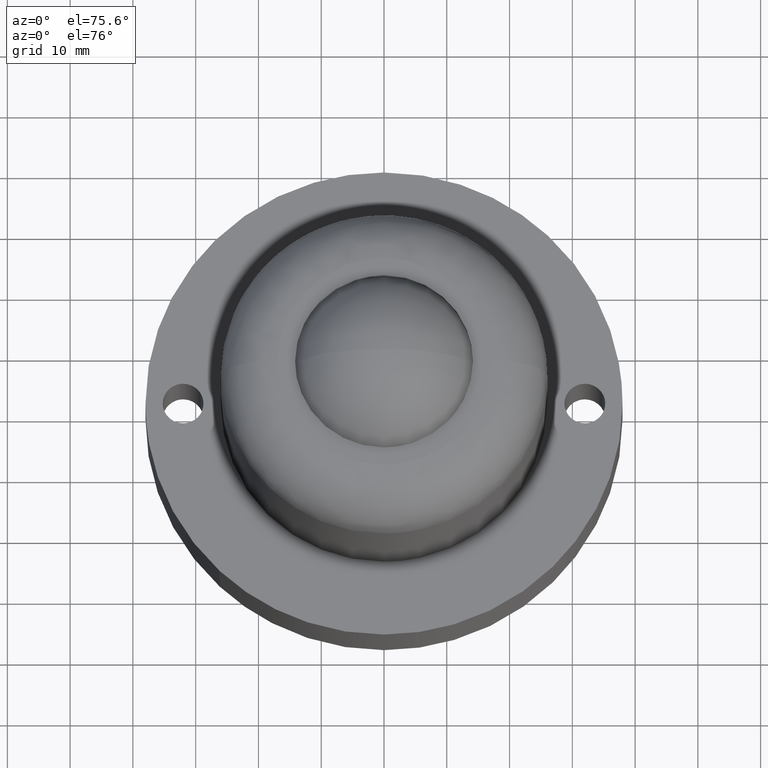
[diagram: clean part render]
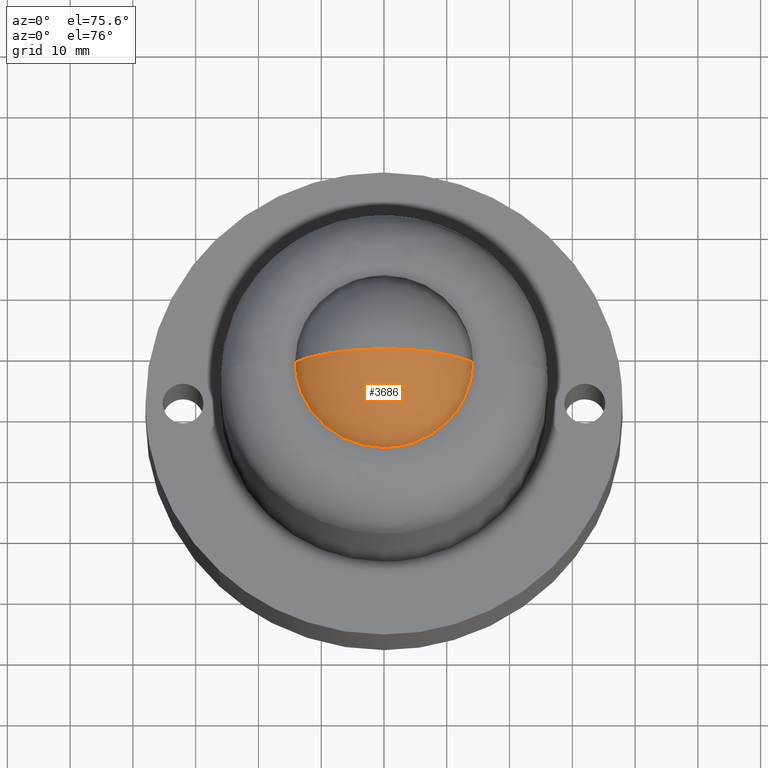
[diagram: same view with one face highlighted and labeled with its STEP entity id]
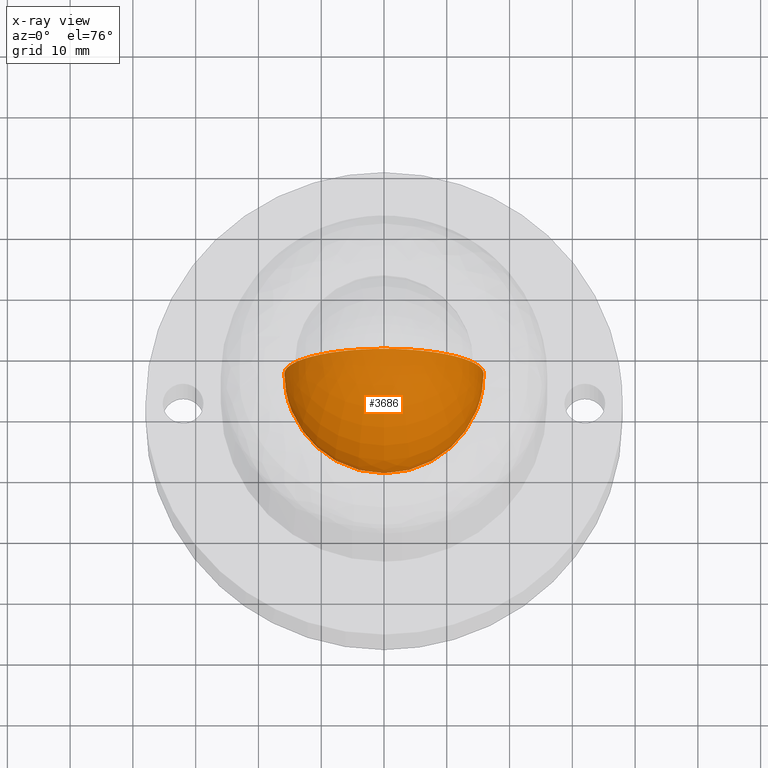
[diagram: x-ray of the same camera — body ghosted, the highlighted face saturated]
A machine part, auxiliary view. The second image highlights one B-rep face of the part: STEP entity #3686.
The next image is the same camera in x-ray: the body ghosted, the highlighted face saturated — about 0% of this face is hidden behind the body in this view.
In plain terms, the highlighted face is a freeform B-spline surface patch.
Its self-contained STEP definition (entity closure, byte-faithful):
#3566=CARTESIAN_POINT('',(-10.406150290438140,5.953124999999996,18.718849709561781));
#3567=CARTESIAN_POINT('',(-9.424437998887365,3.893867924528306,16.559082668150079));
#3568=CARTESIAN_POINT('',(-3.964247729690672,0.755952380952381,13.268009081236999));
#3569=CARTESIAN_POINT('',(3.964247729690829,0.755952380952381,13.268009081236999));
#3570=CARTESIAN_POINT('',(9.424437998887521,3.893867924528306,16.559082668150079));
#3571=CARTESIAN_POINT('',(10.406150290438299,5.953124999999996,18.718849709561781));
#3572=CARTESIAN_POINT('',(-12.565917331849850,3.893867924528306,19.700562001112562));
#3573=CARTESIAN_POINT('',(-11.892743189072174,0.755952380952381,17.232256810927751));
#3574=CARTESIAN_POINT('',(-5.370916278935775,-4.608870967741934,13.012251163192438));
#3575=CARTESIAN_POINT('',(5.370916278935932,-4.608870967741934,13.012251163192438));
#3576=CARTESIAN_POINT('',(11.892743189072329,0.755952380952381,17.232256810927751));
#3577=CARTESIAN_POINT('',(12.565917331850006,3.893867924528306,19.700562001112562));
#3578=CARTESIAN_POINT('',(-15.856990918762925,0.755952380952381,25.160752270309249));
#3579=CARTESIAN_POINT('',(-16.112748836807491,-4.608870967741934,23.754083721064148));
#3580=CARTESIAN_POINT('',(-8.324920232350497,-15.875000000000000,20.800079767649429));
#3581=CARTESIAN_POINT('',(8.324920232350653,-15.875000000000000,20.800079767649429));
#3582=CARTESIAN_POINT('',(16.112748836807643,-4.608870967741934,23.754083721064148));
#3583=CARTESIAN_POINT('',(15.856990918763080,0.755952380952381,25.160752270309249));
#3584=CARTESIAN_POINT('',(-15.856990918762925,0.755952380952381,33.089247729690747));
#3585=CARTESIAN_POINT('',(-16.112748836807491,-4.608870967741934,34.495916278935852));
#3586=CARTESIAN_POINT('',(-8.324920232350497,-15.875000000000000,37.449920232350578));
#3587=CARTESIAN_POINT('',(8.324920232350653,-15.875000000000000,37.449920232350578));
#3588=CARTESIAN_POINT('',(16.112748836807643,-4.608870967741934,34.495916278935852));
#3589=CARTESIAN_POINT('',(15.856990918763080,0.755952380952381,33.089247729690747));
#3590=CARTESIAN_POINT('',(-12.565917331849850,3.893867924528306,38.549437998887434));
#3591=CARTESIAN_POINT('',(-11.892743189072174,0.755952380952381,41.017743189072249));
#3592=CARTESIAN_POINT('',(-5.370916278935775,-4.608870967741934,45.237748836807569));
#3593=CARTESIAN_POINT('',(5.370916278935932,-4.608870967741934,45.237748836807569));
#3594=CARTESIAN_POINT('',(11.892743189072329,0.755952380952381,41.017743189072249));
#3595=CARTESIAN_POINT('',(12.565917331850006,3.893867924528306,38.549437998887434));
#3596=CARTESIAN_POINT('',(-10.406150290438140,5.953124999999996,39.531150290438219));
#3597=CARTESIAN_POINT('',(-9.424437998887365,3.893867924528306,41.690917331849931));
#3598=CARTESIAN_POINT('',(-3.964247729690672,0.755952380952381,44.981990918763003));
#3599=CARTESIAN_POINT('',(3.964247729690829,0.755952380952381,44.981990918763003));
#3600=CARTESIAN_POINT('',(9.424437998887521,3.893867924528306,41.690917331849931));
#3601=CARTESIAN_POINT('',(10.406150290438299,5.953124999999996,39.531150290438219));
#3609=(BOUNDED_SURFACE()B_SPLINE_SURFACE(2,2,((#3566,#3572,#3578,#3584,#3590,#3596),(#3567,#3573,#3579,#3585,#3591,#3597),(#3568,#3574,#3580,#3586,#3592,#3598),(#3569,#3575,#3581,#3587,#3593,#3599),(#3570,#3576,#3582,#3588,#3594,#3600),(#3571,#3577,#3583,#3589,#3595,#3601)),.UNSPECIFIED.,.F.,.F.,.U.)B_SPLINE_SURFACE_WITH_KNOTS((3,1,1,1,3),(3,1,1,1,3),(0.0,14.637222386550460,29.274444773100932,43.911667159651387,58.548889546201863),(0.0,14.637222386550469,29.274444773100939,43.911667159651408,58.548889546201877),.UNSPECIFIED.)GEOMETRIC_REPRESENTATION_ITEM()RATIONAL_B_SPLINE_SURFACE(((3.200000000000000,2.650000000000000,2.100000000000000,2.100000000000000,2.650000000000000,3.200000000000000),(2.650000000000000,2.100000000000000,1.550000000000000,1.550000000000000,2.100000000000000,2.650000000000000),(2.100000000000000,1.550000000000000,1.0,1.0,1.550000000000000,2.100000000000000),(2.100000000000000,1.550000000000000,1.0,1.0,1.550000000000000,2.100000000000000),(2.650000000000000,2.100000000000000,1.550000000000000,1.550000000000000,2.100000000000000,2.650000000000000),(3.200000000000000,2.650000000000000,2.100000000000000,2.100000000000000,2.650000000000000,3.200000000000000)))REPRESENTATION_ITEM('')SURFACE());
#3610=CARTESIAN_POINT('',(-15.874999999999901,0.0,29.124999204589951));
#3611=VERTEX_POINT('',#3610);
#3612=CARTESIAN_POINT('',(7.815970E-014,0.0,13.250000000000000));
#3613=VERTEX_POINT('',#3612);
#3614=CARTESIAN_POINT('',(-15.874999999999901,0.0,29.124999204589951));
#3615=CARTESIAN_POINT('',(-15.875059778974240,0.0,28.280799269188371));
#3616=CARTESIAN_POINT('',(-15.745195910568670,0.0,26.657353821042371));
#3617=CARTESIAN_POINT('',(-15.233664199757550,0.0,24.503361375404669));
#3618=CARTESIAN_POINT('',(-14.508045441313641,0.0,22.587479639546800));
#3619=CARTESIAN_POINT('',(-13.407891051985899,0.0,20.482416973921790));
#3620=CARTESIAN_POINT('',(-11.806680907807120,0.0,18.378016646691052));
#3621=CARTESIAN_POINT('',(-9.634498518653574,0.0,16.409339120056590));
#3622=CARTESIAN_POINT('',(-7.237855976435292,0.0,14.891575515924780));
#3623=CARTESIAN_POINT('',(-4.630156005908327,0.0,13.858064791120920));
#3624=CARTESIAN_POINT('',(-2.175428707119137,0.0,13.346348334475140));
#3625=CARTESIAN_POINT('',(-0.681844019628324,0.0,13.249987139525411));
#3626=CARTESIAN_POINT('',(7.815970E-014,0.0,13.250000000000000));
#3627=B_SPLINE_CURVE_WITH_KNOTS('',3,(#3614,#3615,#3616,#3617,#3618,#3619,#3620,#3621,#3622,#3623,#3624,#3625,#3626),.UNSPECIFIED.,.F.,.U.,(4,1,1,1,1,1,1,1,1,1,4),(0.000000063378732,2.532593650044152,4.870393576652294,6.623742310390632,8.669315296952220,11.981178175131680,14.513752911764071,17.436018705612639,20.455669180675031,22.890892654935978,24.936430357524891),.UNSPECIFIED.);
#3628=EDGE_CURVE('',#3611,#3613,#3627,.T.);
#3629=ORIENTED_EDGE('',*,*,#3628,.T.);
#3630=CARTESIAN_POINT('',(15.875000000000060,0.0,29.124999204589930));
#3631=VERTEX_POINT('',#3630);
#3632=CARTESIAN_POINT('',(15.875000000000060,0.0,29.124999204589930));
#3633=CARTESIAN_POINT('',(15.875075189576201,0.0,28.150928410233590));
#3634=CARTESIAN_POINT('',(15.683221857129730,0.0,26.072900972002110));
#3635=CARTESIAN_POINT('',(14.894089563803830,0.0,23.412560884769910));
#3636=CARTESIAN_POINT('',(13.902986921141411,0.0,21.398093112992239));
#3637=CARTESIAN_POINT('',(12.911949224852670,0.0,19.833019430701000));
#3638=CARTESIAN_POINT('',(11.854545382654530,0.0,18.511832818445740));
#3639=CARTESIAN_POINT('',(10.443764967497570,0.0,17.118266839497601));
#3640=CARTESIAN_POINT('',(8.720433575956500,0.0,15.781759303795340));
#3641=CARTESIAN_POINT('',(6.607683489653322,0.0,14.618914194910310));
#3642=CARTESIAN_POINT('',(4.648381267372931,0.0,13.911153366720621));
#3643=CARTESIAN_POINT('',(2.500079220277873,0.0,13.393989455922220));
#3644=CARTESIAN_POINT('',(1.039030401923681,0.0,13.249844678402440));
#3645=CARTESIAN_POINT('',(7.815970E-014,0.0,13.250000000000000));
#3646=B_SPLINE_CURVE_WITH_KNOTS('',3,(#3632,#3633,#3634,#3635,#3636,#3637,#3638,#3639,#3640,#3641,#3642,#3643,#3644,#3645),.UNSPECIFIED.,.F.,.U.,(4,1,1,1,1,1,1,1,1,1,1,4),(0.000000063361128,2.922214925609094,6.234108145901590,8.279688748123970,9.643404649048541,11.786384778717061,13.344852532754921,15.585263159335790,18.312689502622419,20.553086611373100,21.819382407761879,24.936430357524880),.UNSPECIFIED.);
#3647=EDGE_CURVE('',#3631,#3613,#3646,.T.);
#3648=ORIENTED_EDGE('',*,*,#3647,.F.);
#3649=CARTESIAN_POINT('',(7.815970E-014,0.0,45.0));
#3650=VERTEX_POINT('',#3649);
#3651=CARTESIAN_POINT('',(7.815970E-014,0.0,45.0));
#3652=CARTESIAN_POINT('',(0.844201853436579,0.0,45.000066985926232));
#3653=CARTESIAN_POINT('',(2.240355352619446,0.0,44.888342797343213));
#3654=CARTESIAN_POINT('',(4.274768818990118,0.0,44.451136816438563));
#3655=CARTESIAN_POINT('',(6.307561640953348,0.0,43.758847091759591));
#3656=CARTESIAN_POINT('',(8.216765747869420,0.0,42.768269210442860));
#3657=CARTESIAN_POINT('',(10.046964368332381,0.0,41.470816454319397));
#3658=CARTESIAN_POINT('',(11.822236349667349,0.0,39.842047649829397));
#3659=CARTESIAN_POINT('',(13.449190849310741,0.0,37.717268383296407));
#3660=CARTESIAN_POINT('',(14.567223157008049,0.0,35.545808370491777));
#3661=CARTESIAN_POINT('',(15.329522895745169,0.0,33.435836263471877));
#3662=CARTESIAN_POINT('',(15.774490139695940,0.0,31.365374798228640));
#3663=CARTESIAN_POINT('',(15.875012996977190,0.0,29.806842354704290));
#3664=CARTESIAN_POINT('',(15.875000000000060,0.0,29.124999204589930));
#3665=B_SPLINE_CURVE_WITH_KNOTS('',3,(#3651,#3652,#3653,#3654,#3655,#3656,#3657,#3658,#3659,#3660,#3661,#3662,#3663,#3664),.UNSPECIFIED.,.F.,.U.,(4,1,1,1,1,1,1,1,1,1,1,4),(0.000000063295985,2.532593741096232,4.188540742096471,6.234108369994672,8.961548420561908,10.617492951963040,12.955254835942650,16.169699687115969,18.604915215771179,20.260858357564530,22.890893478046891,24.936431254138771),.UNSPECIFIED.);
#3666=EDGE_CURVE('',#3650,#3631,#3665,.T.);
#3667=ORIENTED_EDGE('',*,*,#3666,.F.);
#3668=CARTESIAN_POINT('',(7.815970E-014,0.0,45.0));
#3669=CARTESIAN_POINT('',(-0.779264183276405,0.0,45.000041312072092));
#3670=CARTESIAN_POINT('',(-2.337775853261995,0.0,44.885015932767033));
#3671=CARTESIAN_POINT('',(-4.561422592031868,0.0,44.385709299114573));
#3672=CARTESIAN_POINT('',(-6.843993838935115,0.0,43.521295908111178));
#3673=CARTESIAN_POINT('',(-8.825944581285663,0.0,42.390511049483393));
#3674=CARTESIAN_POINT('',(-10.846696951304461,0.0,40.803487022337308));
#3675=CARTESIAN_POINT('',(-12.494815350762201,0.0,39.040244643386117));
#3676=CARTESIAN_POINT('',(-14.054004232285870,0.0,36.675468224269039));
#3677=CARTESIAN_POINT('',(-15.097077043303489,0.0,34.282889960642599));
#3678=CARTESIAN_POINT('',(-15.737463693743020,0.0,31.657576658154959));
#3679=CARTESIAN_POINT('',(-15.875067602958771,0.0,30.001673603337071));
#3680=CARTESIAN_POINT('',(-15.874999999999901,0.0,29.124999204589951));
#3681=B_SPLINE_CURVE_WITH_KNOTS('',3,(#3668,#3669,#3670,#3671,#3672,#3673,#3674,#3675,#3676,#3677,#3678,#3679,#3680),.UNSPECIFIED.,.F.,.U.,(4,1,1,1,1,1,1,1,1,1,4),(0.000000063330937,2.337788974612881,4.675578474168898,6.818558765862090,9.643404995854759,11.494138851414590,14.513753433723689,16.851559561327139,19.968627579174250,22.306418011422149,24.936431254138760),.UNSPECIFIED.);
#3682=EDGE_CURVE('',#3650,#3611,#3681,.T.);
#3683=ORIENTED_EDGE('',*,*,#3682,.T.);
#3684=EDGE_LOOP('',(#3629,#3648,#3667,#3683));
#3685=FACE_OUTER_BOUND('',#3684,.T.);
#3686=ADVANCED_FACE('',(#3685),#3609,.T.);